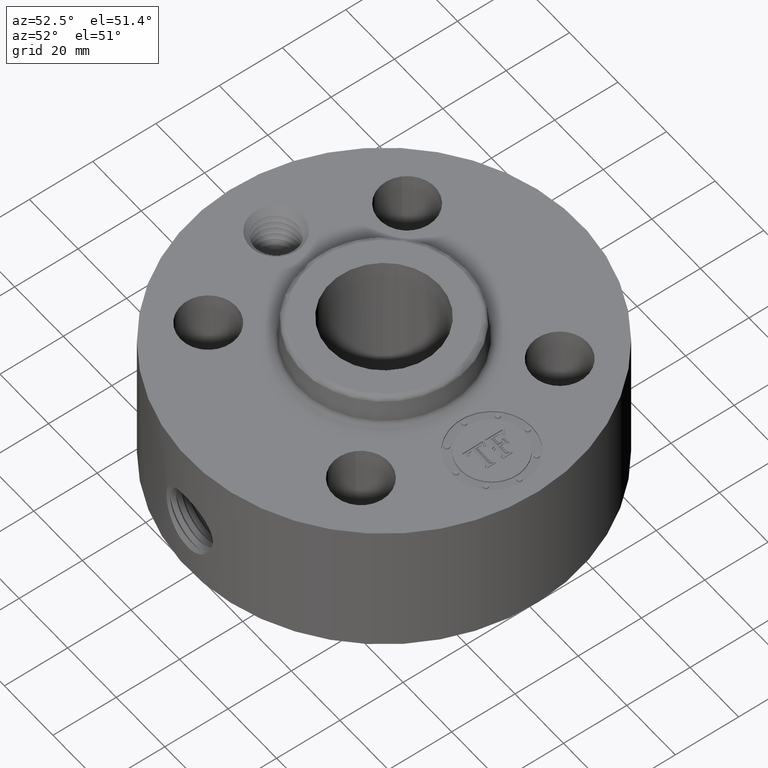
[diagram: clean part render]
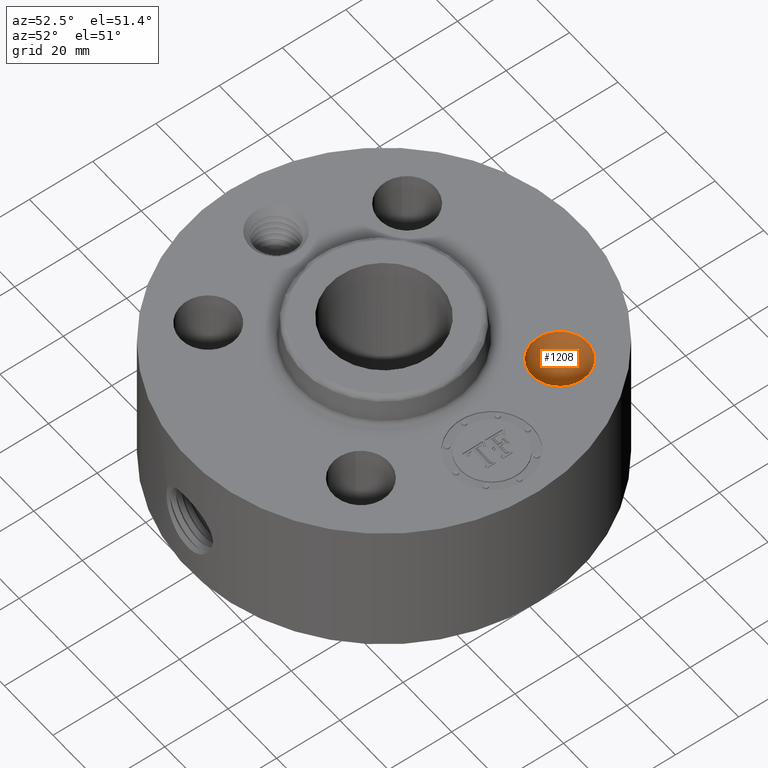
[diagram: same view with one face highlighted and labeled with its STEP entity id]
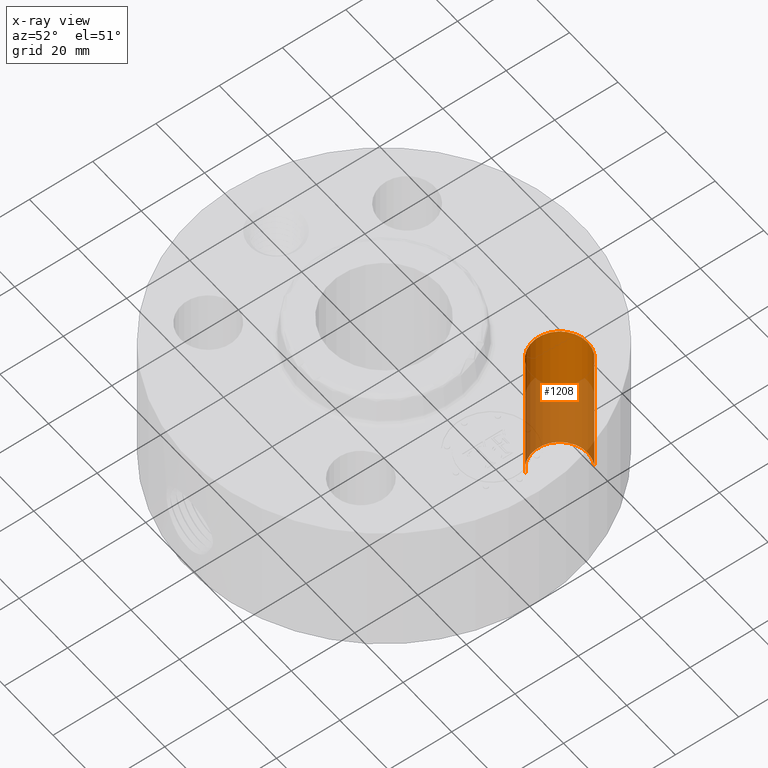
[diagram: x-ray of the same camera — body ghosted, the highlighted face saturated]
A machine part, auxiliary view. The second image highlights one B-rep face of the part: STEP entity #1208.
The next image is the same camera in x-ray: the body ghosted, the highlighted face saturated — about 58% of this face is hidden behind the body in this view.
In plain terms, the highlighted cylindrical surface (edge-blend (fillet) strip) has radius 8.763 mm, axis along (0, 0, -1).
Its self-contained STEP definition (entity closure, byte-faithful):
#281=AXIS2_PLACEMENT_3D('Circle Axis2P3D',#279,#280,$) ;
#556=AXIS2_PLACEMENT_3D('Circle Axis2P3D',#554,#555,$) ;
#1190=AXIS2_PLACEMENT_3D('Cylinder Axis2P3D',#1187,#1188,#1189) ;
#279=CARTESIAN_POINT('Axis2P3D Location',(1.23743686708,1.23743686708,0.)) ;
#283=CARTESIAN_POINT('Vertex',(1.07203505626,0.934670883228,0.)) ;
#285=CARTESIAN_POINT('Vertex',(1.4028386779,1.54020285093,0.)) ;
#549=CARTESIAN_POINT('Vertex',(1.4028386779,1.54020285093,1.75000000001)) ;
#551=CARTESIAN_POINT('Vertex',(1.07203505626,0.934670883228,1.75000000001)) ;
#554=CARTESIAN_POINT('Axis2P3D Location',(1.23743686708,1.23743686708,1.75000000001)) ;
#1187=CARTESIAN_POINT('Axis2P3D Location',(1.23743686708,1.23743686708,1.74606299213)) ;
#1192=CARTESIAN_POINT('Line Origine',(1.07203505626,0.934670883228,0.875000000003)) ;
#1197=CARTESIAN_POINT('Line Origine',(1.4028386779,1.54020285093,0.875000000003)) ;
#280=DIRECTION('Axis2P3D Direction',(0.,0.,-0.0393700787402)) ;
#555=DIRECTION('Axis2P3D Direction',(0.,0.,-0.0393700787402)) ;
#1188=DIRECTION('Axis2P3D Direction',(0.,0.,-0.0393700787402)) ;
#1189=DIRECTION('Axis2P3D XDirection',(0.0188750212049,0.0345504945626,0.)) ;
#1193=DIRECTION('Vector Direction',(0.,0.,-0.0393700787402)) ;
#1198=DIRECTION('Vector Direction',(0.,0.,-0.0393700787402)) ;
#1194=VECTOR('Line Direction',#1193,0.0393700787402) ;
#1199=VECTOR('Line Direction',#1198,0.0393700787402) ;
#1203=ORIENTED_EDGE('',*,*,#1196,.F.) ;
#1204=ORIENTED_EDGE('',*,*,#287,.T.) ;
#1205=ORIENTED_EDGE('',*,*,#1201,.T.) ;
#1206=ORIENTED_EDGE('',*,*,#558,.F.) ;
#1208=ADVANCED_FACE('PartBody',(#1207),#1191,.F.) ;
#282=CIRCLE('generated circle',#281,0.345000000001) ;
#557=CIRCLE('generated circle',#556,0.345000000001) ;
#1191=CYLINDRICAL_SURFACE('generated cylinder',#1190,0.345000000001) ;
#287=EDGE_CURVE('',#284,#286,#282,.T.) ;
#558=EDGE_CURVE('',#552,#550,#557,.T.) ;
#1196=EDGE_CURVE('',#284,#552,#1195,.F.) ;
#1201=EDGE_CURVE('',#286,#550,#1200,.F.) ;
#1202=EDGE_LOOP('',(#1203,#1204,#1205,#1206)) ;
#1207=FACE_OUTER_BOUND('',#1202,.T.) ;
#1195=LINE('Line',#1192,#1194) ;
#1200=LINE('Line',#1197,#1199) ;
#284=VERTEX_POINT('',#283) ;
#286=VERTEX_POINT('',#285) ;
#550=VERTEX_POINT('',#549) ;
#552=VERTEX_POINT('',#551) ;